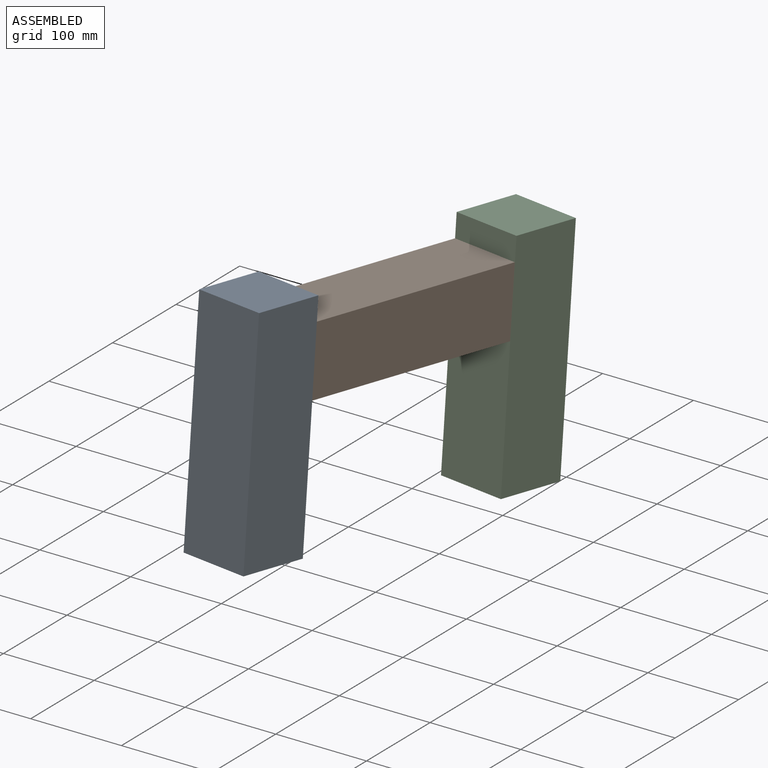
[diagram: assembled view]
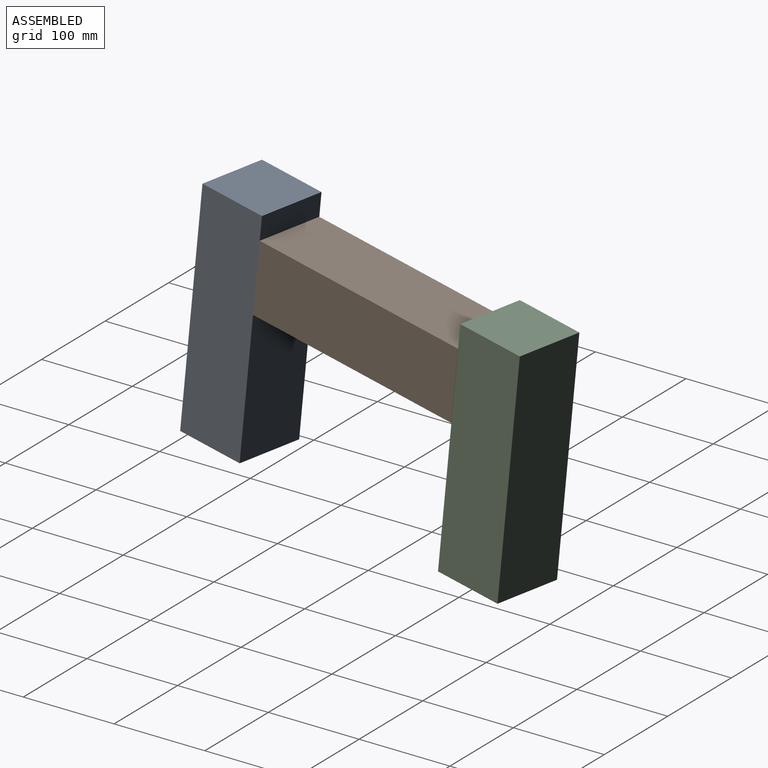
[diagram: assembled view, second angle]
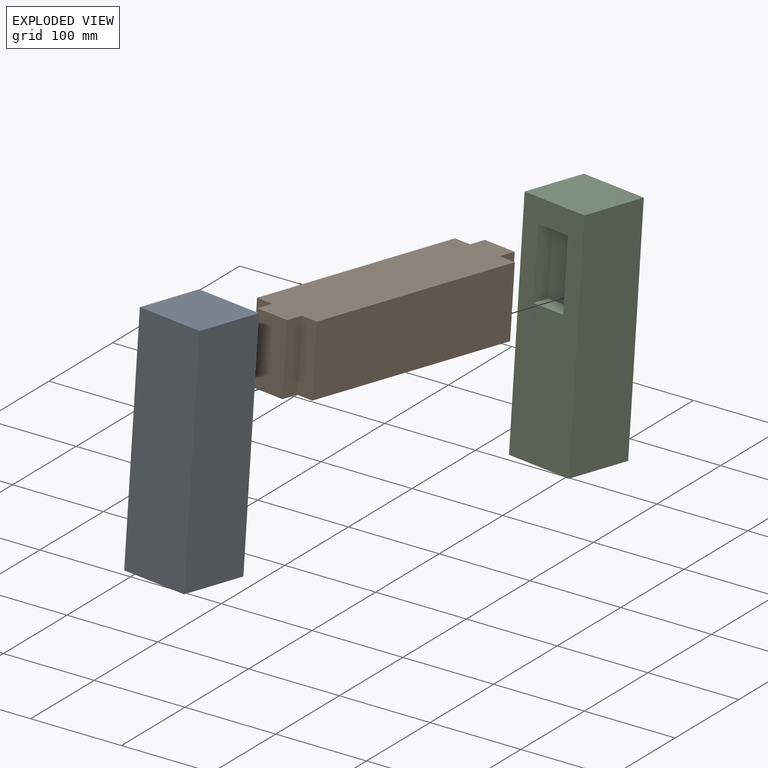
[diagram: exploded view]
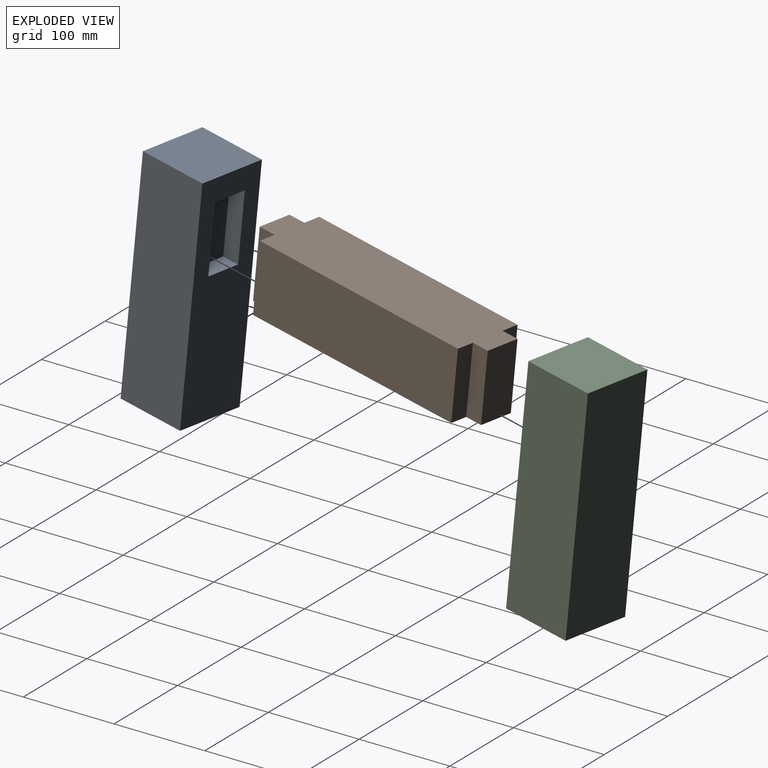
[diagram: exploded view, second angle]
ASSEMBLY  parts=3 mates=2
PART A: 11 faces, bbox 76.2x76.2x254 mm
  f0: plane 254x76.2mm, normal (0,-1,0), area 16451.6mm2, adj f1,f3,f4,f5,f6,f7,f8,f9
  f1: plane 254x76.2mm, normal (1,0,0), area 19354.8mm2, adj f0,f2,f4,f5
  f2: plane 254x76.2mm, normal (0,1,0), area 19354.8mm2, adj f1,f3,f4,f5
  f3: plane 254x76.2mm, normal (-1,0,0), area 19354.8mm2, adj f0,f2,f4,f5
  f4: plane 76.2x76.2mm, normal (0,0,1), area 5806.4mm2, adj f0,f1,f2,f3
  f5: plane 76.2x76.2mm, normal (0,0,-1), area 5806.4mm2, adj f0,f1,f2,f3
  f6: plane 38.1x19.05mm, normal (0,0,1), area 725.8mm2, adj f0,f7,f9,f10
  f7: plane 76.2x19.05mm, normal (-1,0,0), area 1451.6mm2, adj f0,f6,f8,f10
  f8: plane 38.1x19.05mm, normal (0,0,-1), area 725.8mm2, adj f0,f7,f9,f10
  f9: plane 76.2x19.05mm, normal (1,0,0), area 1451.6mm2, adj f0,f6,f8,f10
  f10: plane 76.2x38.1mm, normal (0,-1,0), area 2903.2mm2, adj f6,f7,f8,f9
PART B: 14 faces, bbox 76.2x76.2x292.1 mm
  f0: plane 76.2x19.05mm, normal (0,0,-1), area 1451.6mm2, adj f2,f3,f4,f11
  f1: plane 76.2x19.05mm, normal (0,0,1), area 1451.6mm2, adj f2,f4,f5,f9
  f2: plane 292.1x76.2mm, normal (0,-1,0), area 20806.4mm2, adj f0,f1,f3,f5,f6,f7,f8,f9
  f3: plane 254x76.2mm, normal (1,0,0), area 19354.8mm2, adj f0,f2,f4,f6
  f4: plane 292.1x76.2mm, normal (0,1,0), area 20806.4mm2, adj f0,f1,f3,f5,f6,f7,f8,f9
  f5: plane 254x76.2mm, normal (-1,0,0), area 19354.8mm2, adj f1,f2,f4,f7
  f6: plane 76.2x19.05mm, normal (0,0,1), area 1451.6mm2, adj f2,f3,f4,f8
  f7: plane 76.2x19.05mm, normal (0,0,-1), area 1451.6mm2, adj f2,f4,f5,f12
  f8: plane 76.2x19.05mm, normal (1,0,0), area 1451.6mm2, adj f2,f4,f6,f10
  f9: plane 76.2x19.05mm, normal (-1,0,0), area 1451.6mm2, adj f1,f2,f4,f10
  f10: plane 76.2x38.1mm, normal (0,0,1), area 2903.2mm2, adj f2,f4,f8,f9
  f11: plane 76.2x19.05mm, normal (1,0,0), area 1451.6mm2, adj f0,f2,f4,f13
  f12: plane 76.2x19.05mm, normal (-1,0,0), area 1451.6mm2, adj f2,f4,f7,f13
  f13: plane 76.2x38.1mm, normal (0,0,-1), area 2903.2mm2, adj f2,f4,f11,f12
PART C: same geometry as A
PLACE A rot(axis=(0,0.05,1),170.1deg) t=(121.69,-296.49,15.11)mm
PLACE B rot(axis=(-0.99,0.08,-0.09),95.9deg) t=(128.25,-240.67,201.08)mm
PLACE C rot(axis=(-0.49,-0.04,-0.87),11.4deg) t=(178.51,27.4,-16.42)mm
MATE slider B.f10 <-> C.f10  axis (0.17,0.98,-0.1) through (175.21,27.04,175.02)mm
MATE slider B.f13 <-> A.f10  axis (-0.17,-0.98,0.1) through (124.97,-259.35,202.9)mm
